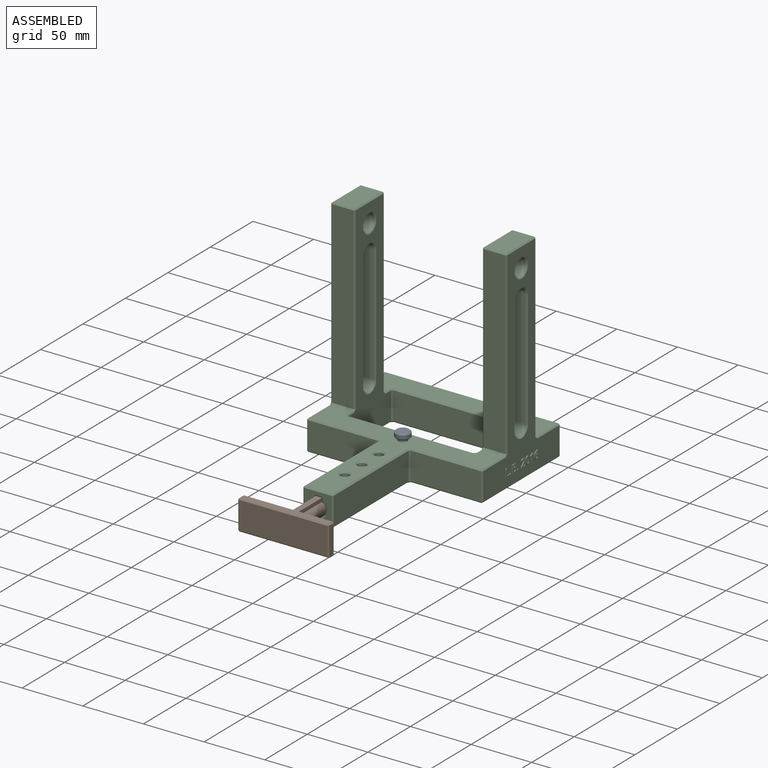
[diagram: assembled view]
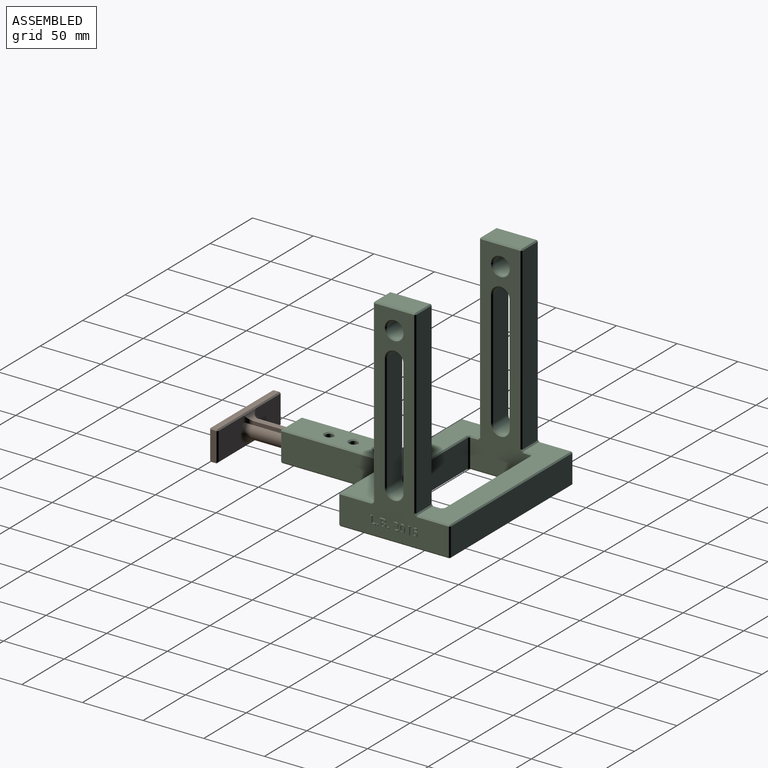
[diagram: assembled view, second angle]
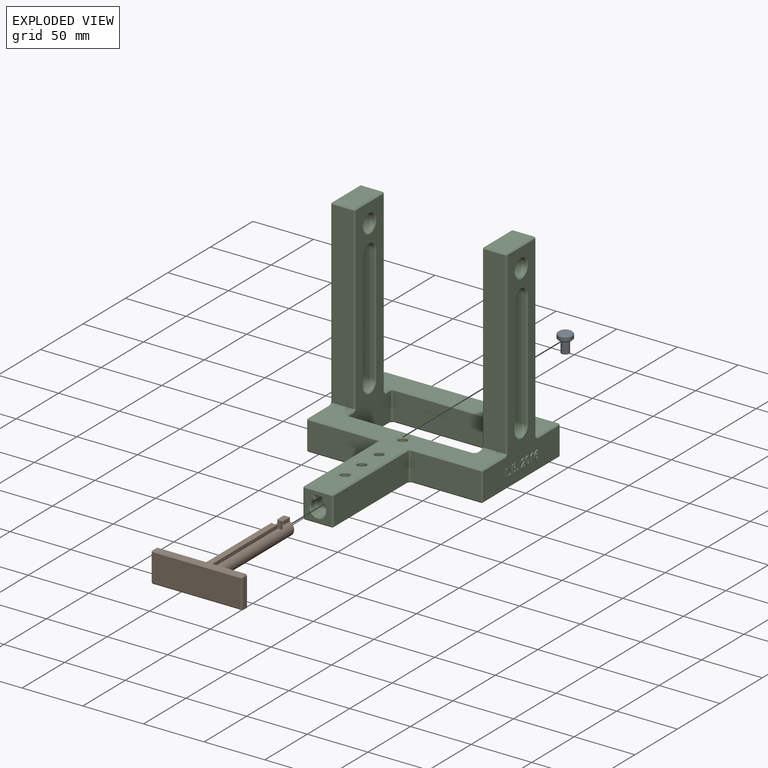
[diagram: exploded view]
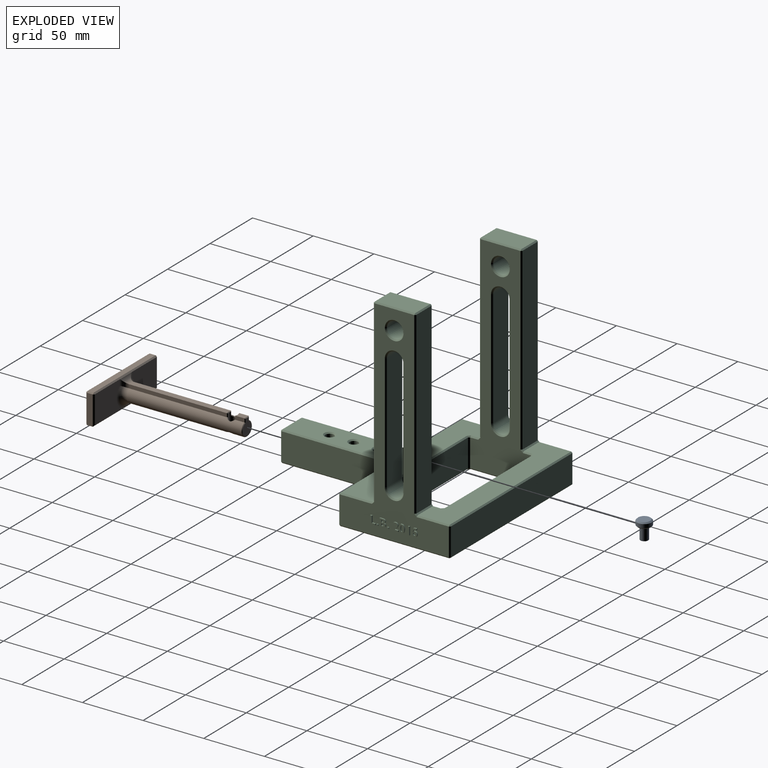
[diagram: exploded view, second angle]
ASSEMBLY  parts=3 mates=2
PART A: 8 faces, bbox 11.9x11.9x15 mm
  f0: cylinder r=3.25mm len=9.5mm, axis (0,0,1), area 194mm2, adj f1,f5
  f1: plane 6.5x6.5mm, normal (0,0,-1), area 33.2mm2, adj f0
  f2: cylinder r=5.97mm len=11.94mm, axis (0,0,-1), area 112.5mm2, adj f6,f7
  f3: plane 9.94x9.94mm, normal (0,0,1), area 77.6mm2, adj f7
  f4: plane 9.94x9.94mm, normal (0,0,-1), area 33.4mm2, adj f5,f6
  f5: cone r=3.75mm half-angle=45deg, axis (0,0,1), area 15.6mm2, adj f0,f4
  f6: cone r=5.97mm half-angle=45deg, axis (0,0,1), area 48.6mm2, adj f2,f4
  f7: cone r=4.97mm half-angle=45deg, axis (0,0,-1), area 48.6mm2, adj f2,f3
PART B: 52 faces, bbox 75x107x30.1 mm
  f0: cylinder r=6mm len=94.5mm, axis (0,1,0), area 2995mm2, adj f1,f2,f7,f8,f15,f39,f41,f42
  f1: plane 7.54x3.05mm, normal (1,0,0), area 23mm2, adj f0,f3,f46,f48
  f2: plane 7.54x3.05mm, normal (-1,0,0), area 23mm2, adj f0,f3,f43,f51
  f3: plane 7.69x5mm, normal (0,0,1), area 36.3mm2, adj f1,f2,f43,f45,f46,f49
  f4: plane 80.19x5mm, normal (0,0,1), area 398.8mm2, adj f7,f8,f18,f39,f40,f42
  f5: plane 32.51x23mm, normal (0,1,0), area 631.4mm2, adj f15,f16,f21,f25,f26
  f6: plane 13.5x11mm, normal (0,1,0), area 105.5mm2, adj f48,f49,f50,f51
  f7: plane 80.04x3.05mm, normal (1,0,0), area 243.8mm2, adj f0,f4,f16,f42
  f8: plane 80.04x3.05mm, normal (-1,0,0), area 243.8mm2, adj f0,f4,f17,f39
  f9: plane 32.51x23mm, normal (0,1,0), area 631.4mm2, adj f15,f17,f22,f23,f25
  f10: plane 23x5mm, normal (-1,0,0), area 115mm2, adj f23,f24,f30,f31
  f11: plane 74x5.06mm, normal (0,0,-1), area 370.2mm2, adj f12,f19,f21,f22,f30,f36
  f12: plane 24x5mm, normal (1,0,0), area 120mm2, adj f11,f26,f33,f37
  f13: plane 73x5mm, normal (0,0,1), area 365mm2, adj f24,f25,f32,f33
  f14: plane 73x23mm, normal (0,-1,0), area 1679mm2, adj f31,f32,f36,f37
  f15: torus R=11mm, axis (0,-1,0), area 311.1mm2, adj f0,f5,f9,f16,f17,f19
  f16: cylinder r=5mm len=7.3mm, axis (0,0,-1), area 29.9mm2, adj f5,f7,f15,f18,f25
  f17: cylinder r=5mm len=7.3mm, axis (0,0,1), area 29.9mm2, adj f8,f9,f15,f18,f25
  f18: cylinder r=5mm len=13.37mm, axis (1,0,0), area 64.6mm2, adj f4,f16,f17,f25
  f19: bspline ~7.98x1.04mm, area 10.8mm2, adj f11,f15,f21,f22
  f20: plane 1x1mm, normal (-0.58,0.58,0.58), area 0.9mm2, adj f23,f24,f25
  f21: plane 33.51x1mm, normal (0,0.71,-0.71), area 46.7mm2, adj f5,f11,f19,f26
  f22: plane 32.51x1mm, normal (0,0.71,-0.71), area 46mm2, adj f9,f11,f19,f27
  f23: plane 23x1mm, normal (-0.71,0.71,0), area 32.5mm2, adj f9,f10,f20,f27
  f24: plane 5x1mm, normal (-0.71,0,0.71), area 7.1mm2, adj f10,f13,f20,f28
  f25: plane 73.03x1.1mm, normal (0,0.71,0.71), area 104.6mm2, adj f5,f9,f13,f16,f17,f18,f20,f29
  f26: plane 24x1mm, normal (0.71,0.71,0), area 33.2mm2, adj f5,f12,f21,f29
  f27: plane 1x1mm, normal (-0.58,0.58,-0.58), area 0.9mm2, adj f22,f23,f30
  f28: plane 1x1mm, normal (-0.58,-0.58,0.58), area 0.9mm2, adj f24,f31,f32
  f29: plane 1x1mm, normal (0.58,0.58,0.58), area 0.9mm2, adj f25,f26,f33
  f30: plane 5x1mm, normal (-0.71,0,-0.71), area 7.1mm2, adj f10,f11,f27,f34
  f31: plane 23x1mm, normal (-0.71,-0.71,0), area 32.5mm2, adj f10,f14,f28,f34
  f32: plane 73x1mm, normal (0,-0.71,0.71), area 103.2mm2, adj f13,f14,f28,f35
  f33: plane 5x1mm, normal (0.71,0,0.71), area 7.1mm2, adj f12,f13,f29,f35
  f34: plane 1x1mm, normal (-0.58,-0.58,-0.58), area 0.9mm2, adj f30,f31,f36
  f35: plane 1x1mm, normal (0.58,-0.58,0.58), area 0.9mm2, adj f32,f33,f37
  f36: plane 74x1mm, normal (0,-0.71,-0.71), area 103.9mm2, adj f11,f14,f34,f37
  f37: plane 24x1mm, normal (0.71,-0.71,0), area 33.2mm2, adj f12,f14,f35,f36
  f38: cylinder r=3.5mm len=13.5mm, axis (0,0,1), area 231.6mm2, adj f39,f40,f41,f42,f43,f44,f45,f46
  f39: plane 3.4x0.77mm, normal (-0.5,0.87,0), area 2.6mm2, adj f0,f4,f8,f38,f40,f41
  f40: cone r=3.5mm half-angle=45deg, axis (0,0,1), area 3mm2, adj f4,f38,f39,f42
  f41: bspline ~6.93x2.61mm, area 7.2mm2, adj f0,f38,f39,f43
  f42: plane 3.4x0.77mm, normal (0.5,0.87,0), area 2.6mm2, adj f0,f4,f7,f38,f40,f44
  f43: plane 3.4x0.77mm, normal (-0.5,-0.87,0), area 2.6mm2, adj f0,f2,f3,f38,f41,f45
  f44: bspline ~6.93x2.61mm, area 7.2mm2, adj f0,f38,f42,f46
  f45: cone r=3.5mm half-angle=45deg, axis (0,0,1), area 3mm2, adj f3,f38,f43,f46
  f46: plane 3.4x0.77mm, normal (0.5,-0.87,0), area 2.6mm2, adj f0,f1,f3,f38,f44,f45
  f47: bspline ~8.73x8.01mm, area 20.9mm2, adj f0,f38
  f48: plane 3.39x0.51mm, normal (0.71,0.71,0), area 2.1mm2, adj f1,f6,f49,f50
  f49: plane 5x0.5mm, normal (0,0.71,0.71), area 3.2mm2, adj f3,f6,f48,f51
  f50: cone r=6mm half-angle=45deg, axis (0,-1,0), area 22.3mm2, adj f0,f6,f48,f51
  f51: plane 3.39x0.51mm, normal (-0.71,0.71,0), area 2.1mm2, adj f2,f6,f49,f50
PART C: 312 faces, bbox 146x182x175 mm
  f0: plane 173x90mm, normal (-1,0,0), area 5154.7mm2, adj f65,f66,f77,f78,f80,f81,f88,f100
  f1: plane 173x90mm, normal (1,0,0), area 5036.5mm2, adj f68,f69,f83,f84,f86,f87,f95,f102
  f2: plane 173x50mm, normal (1,0,0), area 4234.7mm2, adj f97,f98,f108,f114,f115,f122,f125,f126
  f3: plane 173x50mm, normal (-1,0,0), area 4234.7mm2, adj f105,f106,f113,f118,f119,f123,f128,f129
  f4: plane 143x116.5mm, normal (0,0,1), area 4703.5mm2, adj f49,f54,f59,f60,f63,f64,f70,f77
  f5: plane 143x26.5mm, normal (0,0,1), area 2884mm2, adj f82,f101,f102,f116,f117,f126,f127,f128
  f6: plane 180x143mm, normal (0,0,-1), area 9174mm2, adj f42,f46,f47,f51,f52,f56,f57,f66
  f7: plane 15.84x5.5mm, normal (0,0,-1), area 82mm2, adj f16,f17,f18,f40
  f8: plane 15.67x5.5mm, normal (0,0,-1), area 75.9mm2, adj f16,f17,f37,f40
  f9: plane 15.67x5.5mm, normal (0,0,-1), area 75.9mm2, adj f16,f17,f34,f37
  f10: plane 28.84x5.5mm, normal (0,0,-1), area 153.5mm2, adj f16,f17,f34,f144
  f11: plane 103x23mm, normal (0,1,0), area 2369mm2, adj f120,f125,f129,f130
  f12: plane 23x23mm, normal (0,-1,0), area 342.6mm2, adj f42,f45,f48,f49,f142,f143,f144,f145
  f13: plane 88x23mm, normal (1,0,0), area 2024mm2, adj f47,f48,f58,f59
  f14: plane 88x23mm, normal (-1,0,0), area 2024mm2, adj f45,f46,f54,f55
  f15: cylinder r=6.25mm len=89mm, axis (0,1,0), area 2988.2mm2, adj f16,f17,f18,f143
  f16: plane 89x3.14mm, normal (-1,0,0), area 279.2mm2, adj f7,f8,f9,f10,f15,f18,f35,f38
  f17: plane 89x3.14mm, normal (1,0,0), area 279.2mm2, adj f7,f8,f9,f10,f15,f18,f33,f36
  f18: plane 15x12.5mm, normal (0,-1,0), area 137.6mm2, adj f7,f15,f16,f17
  f19: plane 58x23mm, normal (0,-1,0), area 1334mm2, adj f55,f56,f64,f65
  f20: plane 58x23mm, normal (0,-1,0), area 1334mm2, adj f57,f58,f69,f70
  f21: plane 143x23mm, normal (0,1,0), area 3289mm2, adj f67,f81,f82,f83
  f22: plane 103x23mm, normal (0,-1,0), area 2369mm2, adj f127,f136,f137,f141
  f23: plane 148x18mm, normal (0,1,0), area 2664mm2, adj f99,f100,f115,f116
  f24: plane 148x18mm, normal (0,-1,0), area 2664mm2, adj f78,f79,f96,f97
  f25: plane 33x18mm, normal (0,0,1), area 594mm2, adj f79,f80,f98,f99
  f26: plane 148x18mm, normal (0,1,0), area 2664mm2, adj f103,f104,f117,f118
  f27: plane 148x18mm, normal (0,-1,0), area 2664mm2, adj f85,f86,f106,f107
  f28: plane 33x18mm, normal (0,0,1), area 594mm2, adj f84,f85,f104,f105
  f29: cylinder r=6.75mm len=18mm, axis (1,0,0), area 763.4mm2, adj f147,f149
  f30: cylinder r=6.75mm len=18mm, axis (1,0,0), area 763.4mm2, adj f146,f148
  f31: cylinder r=3.5mm len=9mm, axis (0,0,1), area 197.9mm2, adj f32,f153
  f32: plane 7x7mm, normal (0,0,1), area 38.5mm2, adj f31
  f33: plane 4.33x0.75mm, normal (0,0,1), area 2.2mm2, adj f17,f34
  f34: cylinder r=3.5mm len=7mm, axis (0,0,1), area 88mm2, adj f9,f10,f33,f35,f150
  f35: plane 4.33x0.75mm, normal (0,0,1), area 2.2mm2, adj f16,f34
  f36: plane 4.33x0.75mm, normal (0,0,1), area 2.2mm2, adj f17,f37
  f37: cylinder r=3.5mm len=7mm, axis (0,0,1), area 88mm2, adj f8,f9,f36,f38,f151
  f38: plane 4.33x0.75mm, normal (0,0,1), area 2.2mm2, adj f16,f37
  f39: plane 4.33x0.75mm, normal (0,0,1), area 2.2mm2, adj f17,f40
  f40: cylinder r=3.5mm len=7mm, axis (0,0,1), area 88mm2, adj f7,f8,f39,f41,f152
  f41: plane 4.33x0.75mm, normal (0,0,1), area 2.2mm2, adj f16,f40
  f42: plane 23x1mm, normal (0,-0.71,-0.71), area 32.5mm2, adj f6,f12,f43,f44
  f43: plane 1x1mm, normal (-0.58,-0.58,-0.58), area 0.9mm2, adj f42,f45,f46
  f44: plane 1x1mm, normal (0.58,-0.58,-0.58), area 0.9mm2, adj f42,f47,f48
  f45: plane 23x1mm, normal (-0.71,-0.71,0), area 32.5mm2, adj f12,f14,f43,f50
  f46: plane 88x1mm, normal (-0.71,0,-0.71), area 124.5mm2, adj f6,f14,f43,f51
  f47: plane 88x1mm, normal (0.71,0,-0.71), area 124.5mm2, adj f6,f13,f44,f52
  f48: plane 23x1mm, normal (0.71,-0.71,0), area 32.5mm2, adj f12,f13,f44,f53
  f49: plane 23x1mm, normal (0,-0.71,0.71), area 32.5mm2, adj f4,f12,f50,f53
  f50: plane 1x1mm, normal (-0.58,-0.58,0.58), area 0.9mm2, adj f45,f49,f54
  f51: plane 2x2mm, normal (-0.58,-0.58,-0.58), area 2.6mm2, adj f6,f46,f55,f56
  f52: plane 2x2mm, normal (0.58,-0.58,-0.58), area 2.6mm2, adj f6,f47,f57,f58
  f53: plane 1x1mm, normal (0.58,-0.58,0.58), area 0.9mm2, adj f48,f49,f59
  f54: plane 88x1mm, normal (-0.71,0,0.71), area 124.5mm2, adj f4,f14,f50,f60
  f55: plane 23x1mm, normal (-0.71,-0.71,0), area 32.5mm2, adj f14,f19,f51,f60
  f56: plane 58x1mm, normal (0,-0.71,-0.71), area 82mm2, adj f6,f19,f51,f61
  f57: plane 58x1mm, normal (0,-0.71,-0.71), area 82mm2, adj f6,f20,f52,f62
  f58: plane 23x1mm, normal (0.71,-0.71,0), area 32.5mm2, adj f13,f20,f52,f63
  f59: plane 88x1mm, normal (0.71,0,0.71), area 124.5mm2, adj f4,f13,f53,f63
  f60: plane 2x2mm, normal (-0.58,-0.58,0.58), area 2.6mm2, adj f4,f54,f55,f64
  f61: plane 1x1mm, normal (-0.58,-0.58,-0.58), area 0.9mm2, adj f56,f65,f66
  f62: plane 1x1mm, normal (0.58,-0.58,-0.58), area 0.9mm2, adj f57,f68,f69
  f63: plane 2x2mm, normal (0.58,-0.58,0.58), area 2.6mm2, adj f4,f58,f59,f70
  f64: plane 58x1mm, normal (0,-0.71,0.71), area 82mm2, adj f4,f19,f60,f71
  f65: plane 23x1mm, normal (-0.71,-0.71,0), area 32.5mm2, adj f0,f19,f61,f71
  f66: plane 90x1mm, normal (-0.71,0,-0.71), area 127.3mm2, adj f0,f6,f61,f73
  f67: plane 143x1mm, normal (0,0.71,-0.71), area 202.2mm2, adj f6,f21,f73,f74
  f68: plane 90x1mm, normal (0.71,0,-0.71), area 127.3mm2, adj f1,f6,f62,f74
  f69: plane 23x1mm, normal (0.71,-0.71,0), area 32.5mm2, adj f1,f20,f62,f76
  f70: plane 58x1mm, normal (0,-0.71,0.71), area 82mm2, adj f4,f20,f63,f76
  f71: plane 1x1mm, normal (-0.58,-0.58,0.58), area 0.9mm2, adj f64,f65,f77
  f72: plane 1x1mm, normal (-0.58,-0.58,0.58), area 0.9mm2, adj f78,f79,f80
  f73: plane 1x1mm, normal (-0.58,0.58,-0.58), area 0.9mm2, adj f66,f67,f81
  f74: plane 1x1mm, normal (0.58,0.58,-0.58), area 0.9mm2, adj f67,f68,f83
  f75: plane 1x1mm, normal (0.58,-0.58,0.58), area 0.9mm2, adj f84,f85,f86
  f76: plane 1x1mm, normal (0.58,-0.58,0.58), area 0.9mm2, adj f69,f70,f87
  f77: plane 26.5x1mm, normal (-0.71,0,0.71), area 37.5mm2, adj f0,f4,f71,f88
  f78: plane 148x1mm, normal (-0.71,-0.71,0), area 209.3mm2, adj f0,f24,f72,f88
  f79: plane 18x1mm, normal (0,-0.71,0.71), area 25.5mm2, adj f24,f25,f72,f89
  f80: plane 33x1mm, normal (-0.71,0,0.71), area 46.7mm2, adj f0,f25,f72,f90
  f81: plane 23x1mm, normal (-0.71,0.71,0), area 32.5mm2, adj f0,f21,f73,f91
  f82: plane 143x1mm, normal (0,0.71,0.71), area 202.2mm2, adj f5,f21,f91,f92
  f83: plane 23x1mm, normal (0.71,0.71,0), area 32.5mm2, adj f1,f21,f74,f92
  f84: plane 33x1mm, normal (0.71,0,0.71), area 46.7mm2, adj f1,f28,f75,f93
  f85: plane 18x1mm, normal (0,-0.71,0.71), area 25.5mm2, adj f27,f28,f75,f94
  f86: plane 148x1mm, normal (0.71,-0.71,0), area 209.3mm2, adj f1,f27,f75,f95
  f87: plane 26.5x1mm, normal (0.71,0,0.71), area 37.5mm2, adj f1,f4,f76,f95
  f88: plane 2x2mm, normal (-0.58,-0.58,0.58), area 2.6mm2, adj f0,f77,f78,f96
  f89: plane 1x1mm, normal (0.58,-0.58,0.58), area 0.9mm2, adj f79,f97,f98
  f90: plane 1x1mm, normal (-0.58,0.58,0.58), area 0.9mm2, adj f80,f99,f100
  f91: plane 1x1mm, normal (-0.58,0.58,0.58), area 0.9mm2, adj f81,f82,f101
  f92: plane 1x1mm, normal (0.58,0.58,0.58), area 0.9mm2, adj f82,f83,f102
  f93: plane 1x1mm, normal (0.58,0.58,0.58), area 0.9mm2, adj f84,f103,f104
  f94: plane 1x1mm, normal (-0.58,-0.58,0.58), area 0.9mm2, adj f85,f105,f106
  f95: plane 2x2mm, normal (0.58,-0.58,0.58), area 2.6mm2, adj f1,f86,f87,f107
  f96: plane 18x1mm, normal (0,-0.71,0.71), area 25.5mm2, adj f4,f24,f88,f108
  f97: plane 148x1mm, normal (0.71,-0.71,0), area 209.3mm2, adj f2,f24,f89,f108
  f98: plane 33x1mm, normal (0.71,0,0.71), area 46.7mm2, adj f2,f25,f89,f109
  f99: plane 18x1mm, normal (0,0.71,0.71), area 25.5mm2, adj f23,f25,f90,f109
  f100: plane 148x1mm, normal (-0.71,0.71,0), area 209.3mm2, adj f0,f23,f90,f110
  f101: plane 26.5x1mm, normal (-0.71,0,0.71), area 37.5mm2, adj f0,f5,f91,f110
  f102: plane 26.5x1mm, normal (0.71,0,0.71), area 37.5mm2, adj f1,f5,f92,f111
  f103: plane 148x1mm, normal (0.71,0.71,0), area 209.3mm2, adj f1,f26,f93,f111
  f104: plane 18x1mm, normal (0,0.71,0.71), area 25.5mm2, adj f26,f28,f93,f112
  f105: plane 33x1mm, normal (-0.71,0,0.71), area 46.7mm2, adj f3,f28,f94,f112
  f106: plane 148x1mm, normal (-0.71,-0.71,0), area 209.3mm2, adj f3,f27,f94,f113
  f107: plane 18x1mm, normal (0,-0.71,0.71), area 25.5mm2, adj f4,f27,f95,f113
  f108: plane 2x2mm, normal (0.58,-0.58,0.58), area 2.6mm2, adj f2,f96,f97,f114
  f109: plane 1x1mm, normal (0.58,0.58,0.58), area 0.9mm2, adj f98,f99,f115
  f110: plane 2x2mm, normal (-0.58,0.58,0.58), area 2.6mm2, adj f0,f100,f101,f116
  f111: plane 2x2mm, normal (0.58,0.58,0.58), area 2.6mm2, adj f1,f102,f103,f117
  f112: plane 1x1mm, normal (-0.58,0.58,0.58), area 0.9mm2, adj f104,f105,f118
  f113: plane 2x2mm, normal (-0.58,-0.58,0.58), area 2.6mm2, adj f3,f106,f107,f119
  f114: plane 6.5x1mm, normal (0.71,0,0.71), area 9.2mm2, adj f2,f4,f108,f121
  f115: plane 148x1mm, normal (0.71,0.71,0), area 209.3mm2, adj f2,f23,f109,f122
  f116: plane 18x1mm, normal (0,0.71,0.71), area 25.5mm2, adj f5,f23,f110,f122
  f117: plane 18x1mm, normal (0,0.71,0.71), area 25.5mm2, adj f5,f26,f111,f123
  f118: plane 148x1mm, normal (-0.71,0.71,0), area 209.3mm2, adj f3,f26,f112,f123
  f119: plane 6.5x1mm, normal (-0.71,0,0.71), area 9.2mm2, adj f3,f4,f113,f124
  f120: plane 103x1mm, normal (0,0.71,0.71), area 145.7mm2, adj f4,f11,f121,f124
  f121: plane 2x2mm, normal (0.58,0.58,0.58), area 2.6mm2, adj f4,f114,f120,f125
  f122: plane 2x2mm, normal (0.58,0.58,0.58), area 2.6mm2, adj f2,f115,f116,f126
  f123: plane 2x2mm, normal (-0.58,0.58,0.58), area 2.6mm2, adj f3,f117,f118,f128
  f124: plane 2x2mm, normal (-0.58,0.58,0.58), area 2.6mm2, adj f4,f119,f120,f129
  f125: plane 23x1mm, normal (0.71,0.71,0), area 32.5mm2, adj f2,f11,f121,f131
  f126: plane 6.5x1mm, normal (0.71,0,0.71), area 9.2mm2, adj f2,f5,f122,f132
  f127: plane 103x1mm, normal (0,-0.71,0.71), area 145.7mm2, adj f5,f22,f132,f133
  f128: plane 6.5x1mm, normal (-0.71,0,0.71), area 9.2mm2, adj f3,f5,f123,f133
  f129: plane 23x1mm, normal (-0.71,0.71,0), area 32.5mm2, adj f3,f11,f124,f134
  f130: plane 103x1mm, normal (0,0.71,-0.71), area 145.7mm2, adj f6,f11,f131,f134
  f131: plane 2x2mm, normal (0.58,0.58,-0.58), area 2.6mm2, adj f6,f125,f130,f135
  f132: plane 2x2mm, normal (0.58,-0.58,0.58), area 2.6mm2, adj f5,f126,f127,f136
  f133: plane 2x2mm, normal (-0.58,-0.58,0.58), area 2.6mm2, adj f5,f127,f128,f137
  f134: plane 2x2mm, normal (-0.58,0.58,-0.58), area 2.6mm2, adj f6,f129,f130,f138
  f135: plane 50x1mm, normal (0.71,0,-0.71), area 70.7mm2, adj f2,f6,f131,f139
  f136: plane 23x1mm, normal (0.71,-0.71,0), area 32.5mm2, adj f2,f22,f132,f139
  f137: plane 23x1mm, normal (-0.71,-0.71,0), area 32.5mm2, adj f3,f22,f133,f140
  f138: plane 50x1mm, normal (-0.71,0,-0.71), area 70.7mm2, adj f3,f6,f134,f140
  f139: plane 2x2mm, normal (0.58,-0.58,-0.58), area 2.6mm2, adj f6,f135,f136,f141
  f140: plane 2x2mm, normal (-0.58,-0.58,-0.58), area 2.6mm2, adj f6,f137,f138,f141
  f141: plane 103x1mm, normal (0,-0.71,-0.71), area 145.7mm2, adj f6,f22,f139,f140
  f142: plane 4.14x1mm, normal (-0.71,-0.71,0), area 4.7mm2, adj f12,f16,f143,f144
  f143: cone r=7.25mm half-angle=45deg, axis (0,-1,0), area 50.4mm2, adj f12,f15,f142,f145
  f144: plane 7.5x1mm, normal (0,-0.71,-0.71), area 9.2mm2, adj f10,f12,f142,f145
  f145: plane 4.14x1mm, normal (0.71,-0.71,0), area 4.7mm2, adj f12,f17,f143,f144
  f146: cone r=6.75mm half-angle=45deg, axis (-1,0,0), area 64.4mm2, adj f3,f30
  f147: cone r=7.75mm half-angle=45deg, axis (1,0,0), area 64.4mm2, adj f2,f29
  f148: cone r=6.75mm half-angle=45deg, axis (1,0,0), area 64.4mm2, adj f1,f30
  f149: cone r=6.75mm half-angle=45deg, axis (-1,0,0), area 64.4mm2, adj f0,f29
  f150: cone r=3.5mm half-angle=45deg, axis (0,0,1), area 35.5mm2, adj f4,f34
  f151: cone r=3.5mm half-angle=45deg, axis (0,0,1), area 35.5mm2, adj f4,f37
  f152: cone r=3.5mm half-angle=45deg, axis (0,0,1), area 35.5mm2, adj f4,f40
  f153: cone r=3.5mm half-angle=45deg, axis (0,0,1), area 35.5mm2, adj f4,f31
  f154: plane 96.25x18mm, normal (0,1,0), area 1732.5mm2, adj f155,f157,f168,f174
  f155: cylinder r=6.75mm len=18mm, axis (1,0,0), area 381.7mm2, adj f154,f156,f169,f175
  f156: plane 96.25x18mm, normal (0,-1,0), area 1732.5mm2, adj f155,f157,f167,f177
  f157: cylinder r=6.75mm len=18mm, axis (1,0,0), area 381.7mm2, adj f154,f156,f166,f176
  f158: cylinder r=6.75mm len=18mm, axis (1,0,0), area 381.7mm2, adj f159,f161,f162,f171
  f159: plane 96.25x18mm, normal (0,-1,0), area 1732.5mm2, adj f158,f160,f163,f173
  f160: cylinder r=6.75mm len=18mm, axis (1,0,0), area 381.7mm2, adj f159,f161,f165,f172
  f161: plane 96.25x18mm, normal (0,1,0), area 1732.5mm2, adj f158,f160,f164,f170
  f162: cone r=7.75mm half-angle=45deg, axis (-1,0,0), area 32.2mm2, adj f0,f158,f163,f164
  f163: plane 96.25x1mm, normal (-0.71,-0.71,0), area 136.1mm2, adj f0,f159,f162,f165
  f164: plane 96.25x1mm, normal (-0.71,0.71,0), area 136.1mm2, adj f0,f161,f162,f165
  f165: cone r=7.75mm half-angle=45deg, axis (-1,0,0), area 32.2mm2, adj f0,f160,f163,f164
  f166: cone r=7.75mm half-angle=45deg, axis (-1,0,0), area 32.2mm2, adj f3,f157,f167,f168
  f167: plane 96.25x1mm, normal (-0.71,-0.71,0), area 136.1mm2, adj f3,f156,f166,f169
  f168: plane 96.25x1mm, normal (-0.71,0.71,0), area 136.1mm2, adj f3,f154,f166,f169
  f169: cone r=7.75mm half-angle=45deg, axis (-1,0,0), area 32.2mm2, adj f3,f155,f167,f168
  f170: plane 96.25x1mm, normal (0.71,0.71,0), area 136.1mm2, adj f2,f161,f171,f172
  f171: cone r=6.75mm half-angle=45deg, axis (1,0,0), area 32.2mm2, adj f2,f158,f170,f173
  f172: cone r=6.75mm half-angle=45deg, axis (1,0,0), area 32.2mm2, adj f2,f160,f170,f173
  f173: plane 96.25x1mm, normal (0.71,-0.71,0), area 136.1mm2, adj f2,f159,f171,f172
  f174: plane 96.25x1mm, normal (0.71,0.71,0), area 136.1mm2, adj f1,f154,f175,f176
  f175: cone r=7.75mm half-angle=45deg, axis (1,0,0), area 32.2mm2, adj f1,f155,f174,f177
  f176: cone r=7.75mm half-angle=45deg, axis (1,0,0), area 32.2mm2, adj f1,f157,f174,f177
  f177: plane 96.25x1mm, normal (0.71,-0.71,0), area 136.1mm2, adj f1,f156,f175,f176
  f178: plane 4.02x1mm, normal (0,0,-1), area 4mm2, adj f1,f179,f183,f184
  f179: plane 1.14x1mm, normal (0,1,0), area 1.1mm2, adj f1,f178,f180,f184
  f180: plane 2.64x1mm, normal (0,0,1), area 2.6mm2, adj f1,f179,f181,f184
  f181: plane 5.37x1mm, normal (0,1,0), area 5.4mm2, adj f1,f180,f182,f184
  f182: plane 1.38x1mm, normal (0,0,1), area 1.4mm2, adj f1,f181,f183,f184
  f183: plane 6.52x1mm, normal (0,-1,0), area 6.5mm2, adj f1,f178,f182,f184
  f184: plane 6.52x4.02mm, normal (1,0,0), area 12mm2, adj f178,f179,f180,f181,f182,f183
  f185: extruded ~1x0.56mm, area 0.6mm2, adj f1,f186,f192,f193
  f186: extruded ~1x0.58mm, area 0.6mm2, adj f1,f185,f187,f193
  f187: extruded ~1x0.57mm, area 0.6mm2, adj f1,f186,f188,f193
  f188: extruded ~1x0.55mm, area 0.6mm2, adj f1,f187,f189,f193
  f189: extruded ~1x0.56mm, area 0.6mm2, adj f1,f188,f190,f193
  f190: extruded ~1x0.57mm, area 0.6mm2, adj f1,f189,f191,f193
  f191: extruded ~1x0.58mm, area 0.6mm2, adj f1,f190,f192,f193
  f192: extruded ~1x0.57mm, area 0.6mm2, adj f1,f185,f191,f193
  f193: plane 1.56x1.51mm, normal (1,0,0), area 1.9mm2, adj f185,f186,f187,f188,f189,f190,f191,f192
  f194: plane 6.52x1mm, normal (0,-1,0), area 6.5mm2, adj f1,f195,f218,f219
  f195: plane 2.44x1mm, normal (0,0,-1), area 2.4mm2, adj f1,f194,f196,f219
  f196: extruded ~1.75x1mm, area 1.9mm2, adj f1,f195,f197,f219
  f197: extruded ~1.39x1mm, area 1.6mm2, adj f1,f196,f198,f219
  f198: extruded ~1.01x1mm, area 1.1mm2, adj f1,f197,f199,f219
  f199: extruded ~1x0.89mm, area 1.1mm2, adj f1,f198,f200,f219
  f200: plane 1x0.04mm, normal (0,1,0), area 0mm2, adj f1,f199,f201,f219
  f201: extruded ~1x0.73mm, area 0.9mm2, adj f1,f200,f202,f219
  f202: extruded ~1x0.96mm, area 1mm2, adj f1,f201,f203,f219
  f203: extruded ~1.25x1mm, area 1.5mm2, adj f1,f202,f204,f219
  f204: extruded ~2.01x1mm, area 2.1mm2, adj f1,f203,f218,f219
  f205: plane 1.45x1mm, normal (0,1,0), area 1.4mm2, adj f206,f216,f219,f221
  f206: plane 1x0.73mm, normal (0,0,-1), area 0.7mm2, adj f205,f207,f219,f221
  f207: extruded ~1x0.87mm, area 0.9mm2, adj f206,f208,f219,f221
  f208: extruded ~1x0.54mm, area 0.6mm2, adj f207,f209,f219,f221
  f209: extruded ~1x0.57mm, area 0.7mm2, adj f208,f210,f219,f221
  f210: extruded ~1x0.81mm, area 0.8mm2, adj f209,f216,f219,f221
  f211: plane 1x0.86mm, normal (0,0,-1), area 0.9mm2, adj f212,f217,f219,f220
  f212: extruded ~1.16x1mm, area 1.6mm2, adj f211,f213,f219,f220
  f213: extruded ~1x0.67mm, area 0.7mm2, adj f212,f214,f219,f220
  f214: extruded ~1x0.84mm, area 0.9mm2, adj f213,f215,f219,f220
  f215: plane 1x0.9mm, normal (0,0,1), area 0.9mm2, adj f214,f217,f219,f220
  f216: plane 1x0.8mm, normal (0,0,1), area 0.8mm2, adj f205,f210,f219,f221
  f217: plane 1.7x1mm, normal (0,1,0), area 1.7mm2, adj f211,f215,f219,f220
  f218: plane 2.03x1mm, normal (0,0,1), area 2mm2, adj f1,f194,f204,f219
  f219: plane 6.52x4.83mm, normal (1,0,0), area 23.1mm2, adj f194,f195,f196,f197,f198,f199,f200,f201
  f220: plane 2.01x1.7mm, normal (1,0,0), area 3.1mm2, adj f211,f212,f213,f214,f215,f217
  f221: plane 1.87x1.45mm, normal (1,0,0), area 2.5mm2, adj f205,f206,f207,f208,f209,f210,f216
  f222: extruded ~1x0.56mm, area 0.6mm2, adj f1,f223,f229,f230
  f223: extruded ~1x0.58mm, area 0.6mm2, adj f1,f222,f224,f230
  f224: extruded ~1x0.57mm, area 0.6mm2, adj f1,f223,f225,f230
  f225: extruded ~1x0.55mm, area 0.6mm2, adj f1,f224,f226,f230
  f226: extruded ~1x0.56mm, area 0.6mm2, adj f1,f225,f227,f230
  f227: extruded ~1x0.57mm, area 0.6mm2, adj f1,f226,f228,f230
  f228: extruded ~1x0.58mm, area 0.6mm2, adj f1,f227,f229,f230
  f229: extruded ~1x0.57mm, area 0.6mm2, adj f1,f222,f228,f230
  f230: plane 1.56x1.51mm, normal (1,0,0), area 1.9mm2, adj f222,f223,f224,f225,f226,f227,f228,f229
  f231: plane 1.16x1mm, normal (0,1,0), area 1.2mm2, adj f1,f232,f254,f255
  f232: plane 2.84x1mm, normal (0,0,1), area 2.8mm2, adj f1,f231,f233,f255
  f233: plane 1x0.06mm, normal (0,1,0), area 0.1mm2, adj f1,f232,f234,f255
  f234: plane 1x0.84mm, normal (0,0.69,-0.73), area 1.2mm2, adj f1,f233,f235,f255
  f235: extruded ~1.18x1.17mm, area 1.7mm2, adj f1,f234,f236,f255
  f236: extruded ~1x0.81mm, area 0.9mm2, adj f1,f235,f237,f255
  f237: extruded ~1x0.85mm, area 0.9mm2, adj f1,f236,f238,f255
  f238: extruded ~1x0.92mm, area 1mm2, adj f1,f237,f239,f255
  f239: extruded ~1x0.73mm, area 1mm2, adj f1,f238,f240,f255
  f240: extruded ~1.08x1mm, area 1.1mm2, adj f1,f239,f241,f255
  f241: extruded ~1x0.84mm, area 0.8mm2, adj f1,f240,f242,f255
  f242: extruded ~1x0.69mm, area 0.7mm2, adj f1,f241,f243,f255
  f243: extruded ~1x0.8mm, area 1mm2, adj f1,f242,f244,f255
  f244: plane 1x0.89mm, normal (0,-0.76,-0.65), area 1.2mm2, adj f1,f243,f245,f255
  f245: extruded ~1x0.74mm, area 0.9mm2, adj f1,f244,f246,f255
  f246: extruded ~1x0.73mm, area 0.8mm2, adj f1,f245,f247,f255
  f247: extruded ~1x0.58mm, area 0.6mm2, adj f1,f246,f248,f255
  f248: extruded ~1x0.58mm, area 0.6mm2, adj f1,f247,f249,f255
  f249: extruded ~1x0.51mm, area 0.5mm2, adj f1,f248,f250,f255
  f250: extruded ~1x0.53mm, area 0.6mm2, adj f1,f249,f251,f255
  f251: extruded ~1.03x1mm, area 1.4mm2, adj f1,f250,f252,f255
  f252: plane 1.65x1.64mm, normal (0,-0.71,0.7), area 2.3mm2, adj f1,f251,f253,f255
  f253: plane 1x0.96mm, normal (0,-1,0), area 1mm2, adj f1,f252,f254,f255
  f254: plane 4.55x1mm, normal (0,0,-1), area 4.6mm2, adj f1,f231,f253,f255
  f255: plane 6.61x4.57mm, normal (1,0,0), area 15.8mm2, adj f231,f232,f233,f234,f235,f236,f237,f238
  f256: extruded ~2.51x1mm, area 2.6mm2, adj f1,f257,f271,f272
  f257: extruded ~1.7x1mm, area 2mm2, adj f1,f256,f258,f272
  f258: extruded ~1.72x1mm, area 2mm2, adj f1,f257,f259,f272
  f259: extruded ~2.54x1mm, area 2.6mm2, adj f1,f258,f260,f272
  f260: extruded ~2.5x1mm, area 2.6mm2, adj f1,f259,f261,f272
  f261: extruded ~1.7x1mm, area 2mm2, adj f1,f260,f262,f272
  f262: extruded ~1.72x1mm, area 2mm2, adj f1,f261,f271,f272
  f263: extruded ~1.72x1mm, area 1.7mm2, adj f264,f270,f272,f273
  f264: extruded ~1x0.7mm, area 0.9mm2, adj f263,f265,f272,f273
  f265: extruded ~1x0.69mm, area 0.9mm2, adj f264,f266,f272,f273
  f266: extruded ~1.72x1mm, area 1.7mm2, adj f265,f267,f272,f273
  f267: extruded ~1.71x1mm, area 1.7mm2, adj f266,f268,f272,f273
  f268: extruded ~1x0.7mm, area 0.9mm2, adj f267,f269,f272,f273
  f269: extruded ~1x0.7mm, area 0.9mm2, adj f268,f270,f272,f273
  f270: extruded ~1.72x1mm, area 1.7mm2, adj f263,f269,f272,f273
  f271: extruded ~2.53x1mm, area 2.6mm2, adj f1,f256,f262,f272
  f272: plane 6.71x4.55mm, normal (1,0,0), area 18.6mm2, adj f256,f257,f258,f259,f260,f261,f262,f263
  f273: plane 4.48x1.81mm, normal (1,0,0), area 6.9mm2, adj f263,f264,f265,f266,f267,f268,f269,f270
  f274: plane 6.52x1mm, normal (0,1,0), area 6.5mm2, adj f1,f275,f283,f284
  f275: plane 1.13x1mm, normal (0,0,1), area 1.1mm2, adj f1,f274,f276,f284
  f276: plane 2.1x1.67mm, normal (0,-0.62,0.78), area 2.7mm2, adj f1,f275,f277,f284
  f277: plane 1x0.83mm, normal (0,-0.78,-0.63), area 1.1mm2, adj f1,f276,f278,f284
  f278: plane 1x0.75mm, normal (0,0.63,-0.78), area 1mm2, adj f1,f277,f279,f284
  f279: extruded ~1x0.48mm, area 0.7mm2, adj f1,f278,f280,f284
  f280: plane 1x0.68mm, normal (0,-1,0.03), area 0.7mm2, adj f1,f279,f281,f284
  f281: plane 1x0.62mm, normal (0,-1,0.02), area 0.6mm2, adj f1,f280,f282,f284
  f282: plane 3.77x1mm, normal (0,-1,0), area 3.8mm2, adj f1,f281,f283,f284
  f283: plane 1.38x1mm, normal (0,0,-1), area 1.4mm2, adj f1,f274,f282,f284
  f284: plane 6.52x3.23mm, normal (1,0,0), area 11mm2, adj f274,f275,f276,f277,f278,f279,f280,f281
  f285: extruded ~1.55x1mm, area 1.6mm2, adj f1,f286,f309,f310
  f286: extruded ~1x0.98mm, area 1.3mm2, adj f1,f285,f287,f310
  f287: extruded ~1.26x1mm, area 1.3mm2, adj f1,f286,f288,f310
  f288: extruded ~1.63x1mm, area 1.8mm2, adj f1,f287,f289,f310
  f289: extruded ~1.65x1mm, area 1.8mm2, adj f1,f288,f290,f310
  f290: extruded ~1.52x1mm, area 1.6mm2, adj f1,f289,f291,f310
  f291: extruded ~1.37x1mm, area 1.5mm2, adj f1,f290,f292,f310
  f292: extruded ~1.41x1mm, area 1.7mm2, adj f1,f291,f293,f310
  f293: plane 1x0.06mm, normal (0,0,1), area 0.1mm2, adj f1,f292,f294,f310
  f294: extruded ~1.19x1mm, area 1.2mm2, adj f1,f293,f295,f310
  f295: extruded ~1x0.67mm, area 0.9mm2, adj f1,f294,f296,f310
  f296: extruded ~1.16x1mm, area 1.2mm2, adj f1,f295,f297,f310
  f297: extruded ~1x0.78mm, area 0.8mm2, adj f1,f296,f298,f310
  f298: plane 1.1x1mm, normal (0,1,0), area 1.1mm2, adj f1,f297,f299,f310
  f299: extruded ~1x0.87mm, area 0.9mm2, adj f1,f298,f300,f310
  f300: extruded ~2.45x1mm, area 2.7mm2, adj f1,f299,f309,f310
  f301: extruded ~1x0.71mm, area 0.8mm2, adj f302,f308,f310,f311
  f302: extruded ~1x0.9mm, area 1mm2, adj f301,f303,f310,f311
  f303: extruded ~1x0.63mm, area 0.7mm2, adj f302,f304,f310,f311
  f304: extruded ~1x0.72mm, area 0.8mm2, adj f303,f305,f310,f311
  f305: extruded ~1x0.67mm, area 0.7mm2, adj f304,f306,f310,f311
  f306: extruded ~1x0.75mm, area 0.8mm2, adj f305,f307,f310,f311
  f307: extruded ~1x0.84mm, area 0.9mm2, adj f306,f308,f310,f311
  f308: extruded ~1x0.68mm, area 0.8mm2, adj f301,f307,f310,f311
  f309: extruded ~2.88x1mm, area 3.1mm2, adj f1,f285,f300,f310
  f310: plane 6.68x4.6mm, normal (1,0,0), area 18.1mm2, adj f285,f286,f287,f288,f289,f290,f291,f292
  f311: plane 2.17x1.9mm, normal (1,0,0), area 3.3mm2, adj f301,f302,f303,f304,f305,f306,f307,f308
PLACE A rot(axis=(0,0,1),107.7deg) t=(9.53,29.76,0.93)mm
PLACE B t=(0,-7.26,0)mm
PLACE C t=(0,16.73,0)mm fixed
MATE cylindrical B.f0 <-> C.f15  axis (0,1,0) through (0,-7.26,0)mm
MATE cylindrical C.f153 <-> A.f6  axis (0,0,1) through (0,26.73,13.75)mm
